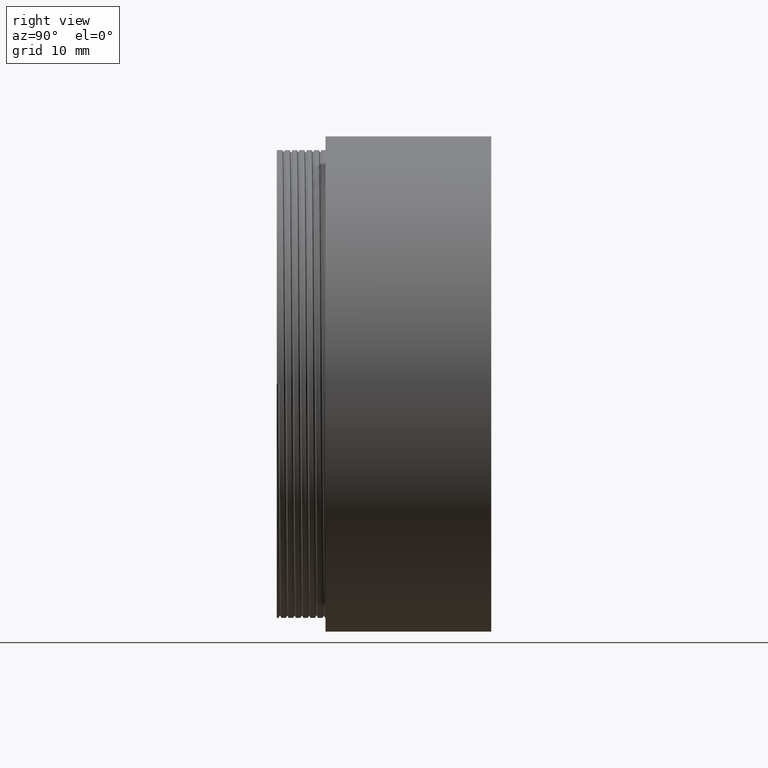
[diagram: clean part render]
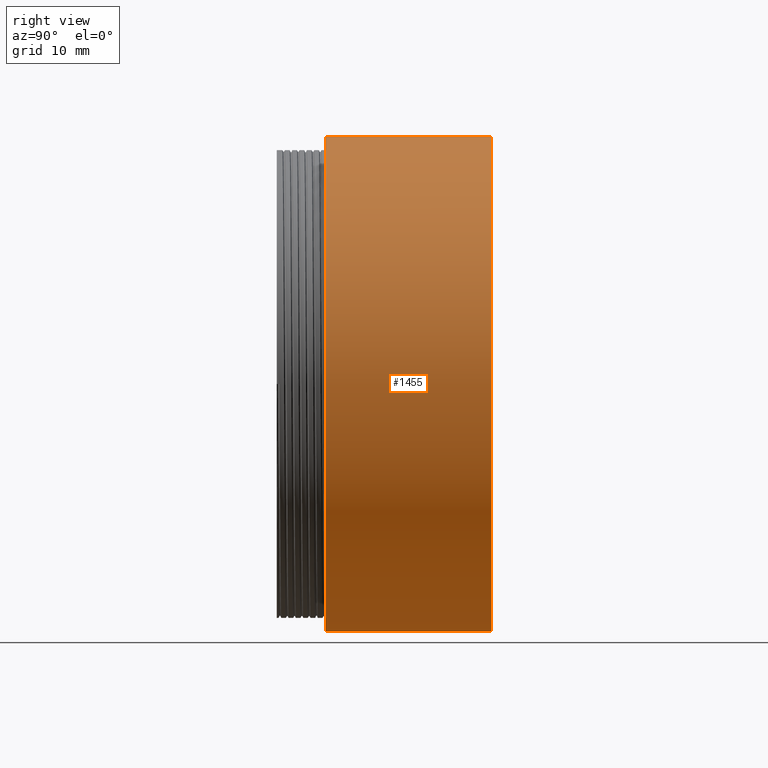
[diagram: same view with one face highlighted and labeled with its STEP entity id]
A machine part, right view. The second image highlights one B-rep face of the part: STEP entity #1455.
In plain terms, the highlighted cylindrical surface (partial cylindrical patch) has radius 25.4 mm, axis along (-0, -1, -0).
Its self-contained STEP definition (entity closure, byte-faithful):
#27 = LINE ( 'NONE', #3550, #3014 ) ;
#135 = DIRECTION ( 'NONE',  ( -0.000000000000000000, -1.000000000000000000, -0.000000000000000000 ) ) ;
#169 = CARTESIAN_POINT ( 'NONE',  ( 3.110602869834276865E-15, 5.000000000000000888, 25.39999999999999858 ) ) ;
#229 = CARTESIAN_POINT ( 'NONE',  ( 3.110602869834276865E-15, 0.000000000000000000, 25.39999999999999858 ) ) ;
#458 = AXIS2_PLACEMENT_3D ( 'NONE', #3479, #135, #5033 ) ;
#468 = CIRCLE ( 'NONE', #594, 25.39999999999999858 ) ;
#594 = AXIS2_PLACEMENT_3D ( 'NONE', #3731, #5898, #4205 ) ;
#843 = CARTESIAN_POINT ( 'NONE',  ( 0.000000000000000000, 22.00000000000000000, -25.39999999999999858 ) ) ;
#1455 = ADVANCED_FACE ( 'NONE', ( #2627 ), #5280, .T. ) ;
#1630 = VERTEX_POINT ( 'NONE', #4118 ) ;
#1895 = ORIENTED_EDGE ( 'NONE', *, *, #3552, .F. ) ;
#2208 = EDGE_CURVE ( 'NONE', #3214, #5327, #5707, .T. ) ;
#2358 = EDGE_LOOP ( 'NONE', ( #4384, #3665, #5675, #1895 ) ) ;
#2627 = FACE_OUTER_BOUND ( 'NONE', #2358, .T. ) ;
#3014 = VECTOR ( 'NONE', #6408, 1000.000000000000000 ) ;
#3123 = CIRCLE ( 'NONE', #458, 25.39999999999999858 ) ;
#3214 = VERTEX_POINT ( 'NONE', #6121 ) ;
#3326 = EDGE_CURVE ( 'NONE', #1630, #5327, #3123, .T. ) ;
#3479 = CARTESIAN_POINT ( 'NONE',  ( 0.000000000000000000, 5.000000000000000888, 0.000000000000000000 ) ) ;
#3480 = AXIS2_PLACEMENT_3D ( 'NONE', #7056, #5885, #6400 ) ;
#3550 = CARTESIAN_POINT ( 'NONE',  ( 0.000000000000000000, 0.000000000000000000, -25.39999999999999858 ) ) ;
#3552 = EDGE_CURVE ( 'NONE', #5982, #1630, #27, .T. ) ;
#3665 = ORIENTED_EDGE ( 'NONE', *, *, #2208, .T. ) ;
#3731 = CARTESIAN_POINT ( 'NONE',  ( 0.000000000000000000, 22.00000000000000000, 0.000000000000000000 ) ) ;
#4087 = DIRECTION ( 'NONE',  ( -0.000000000000000000, -1.000000000000000000, -0.000000000000000000 ) ) ;
#4118 = CARTESIAN_POINT ( 'NONE',  ( 0.000000000000000000, 5.000000000000000888, -25.39999999999999858 ) ) ;
#4205 = DIRECTION ( 'NONE',  ( 0.000000000000000000, 0.000000000000000000, -1.000000000000000000 ) ) ;
#4384 = ORIENTED_EDGE ( 'NONE', *, *, #7042, .T. ) ;
#5033 = DIRECTION ( 'NONE',  ( 0.000000000000000000, 0.000000000000000000, -1.000000000000000000 ) ) ;
#5280 = CYLINDRICAL_SURFACE ( 'NONE', #3480, 25.39999999999999858 ) ;
#5327 = VERTEX_POINT ( 'NONE', #169 ) ;
#5438 = VECTOR ( 'NONE', #4087, 1000.000000000000000 ) ;
#5675 = ORIENTED_EDGE ( 'NONE', *, *, #3326, .F. ) ;
#5707 = LINE ( 'NONE', #229, #5438 ) ;
#5885 = DIRECTION ( 'NONE',  ( -0.000000000000000000, -1.000000000000000000, -0.000000000000000000 ) ) ;
#5898 = DIRECTION ( 'NONE',  ( -0.000000000000000000, -1.000000000000000000, -0.000000000000000000 ) ) ;
#5982 = VERTEX_POINT ( 'NONE', #843 ) ;
#6121 = CARTESIAN_POINT ( 'NONE',  ( 3.110602869834276865E-15, 22.00000000000000000, 25.39999999999999858 ) ) ;
#6400 = DIRECTION ( 'NONE',  ( 0.000000000000000000, 0.000000000000000000, -1.000000000000000000 ) ) ;
#6408 = DIRECTION ( 'NONE',  ( -0.000000000000000000, -1.000000000000000000, -0.000000000000000000 ) ) ;
#7042 = EDGE_CURVE ( 'NONE', #5982, #3214, #468, .T. ) ;
#7056 = CARTESIAN_POINT ( 'NONE',  ( 0.000000000000000000, 0.000000000000000000, 0.000000000000000000 ) ) ;